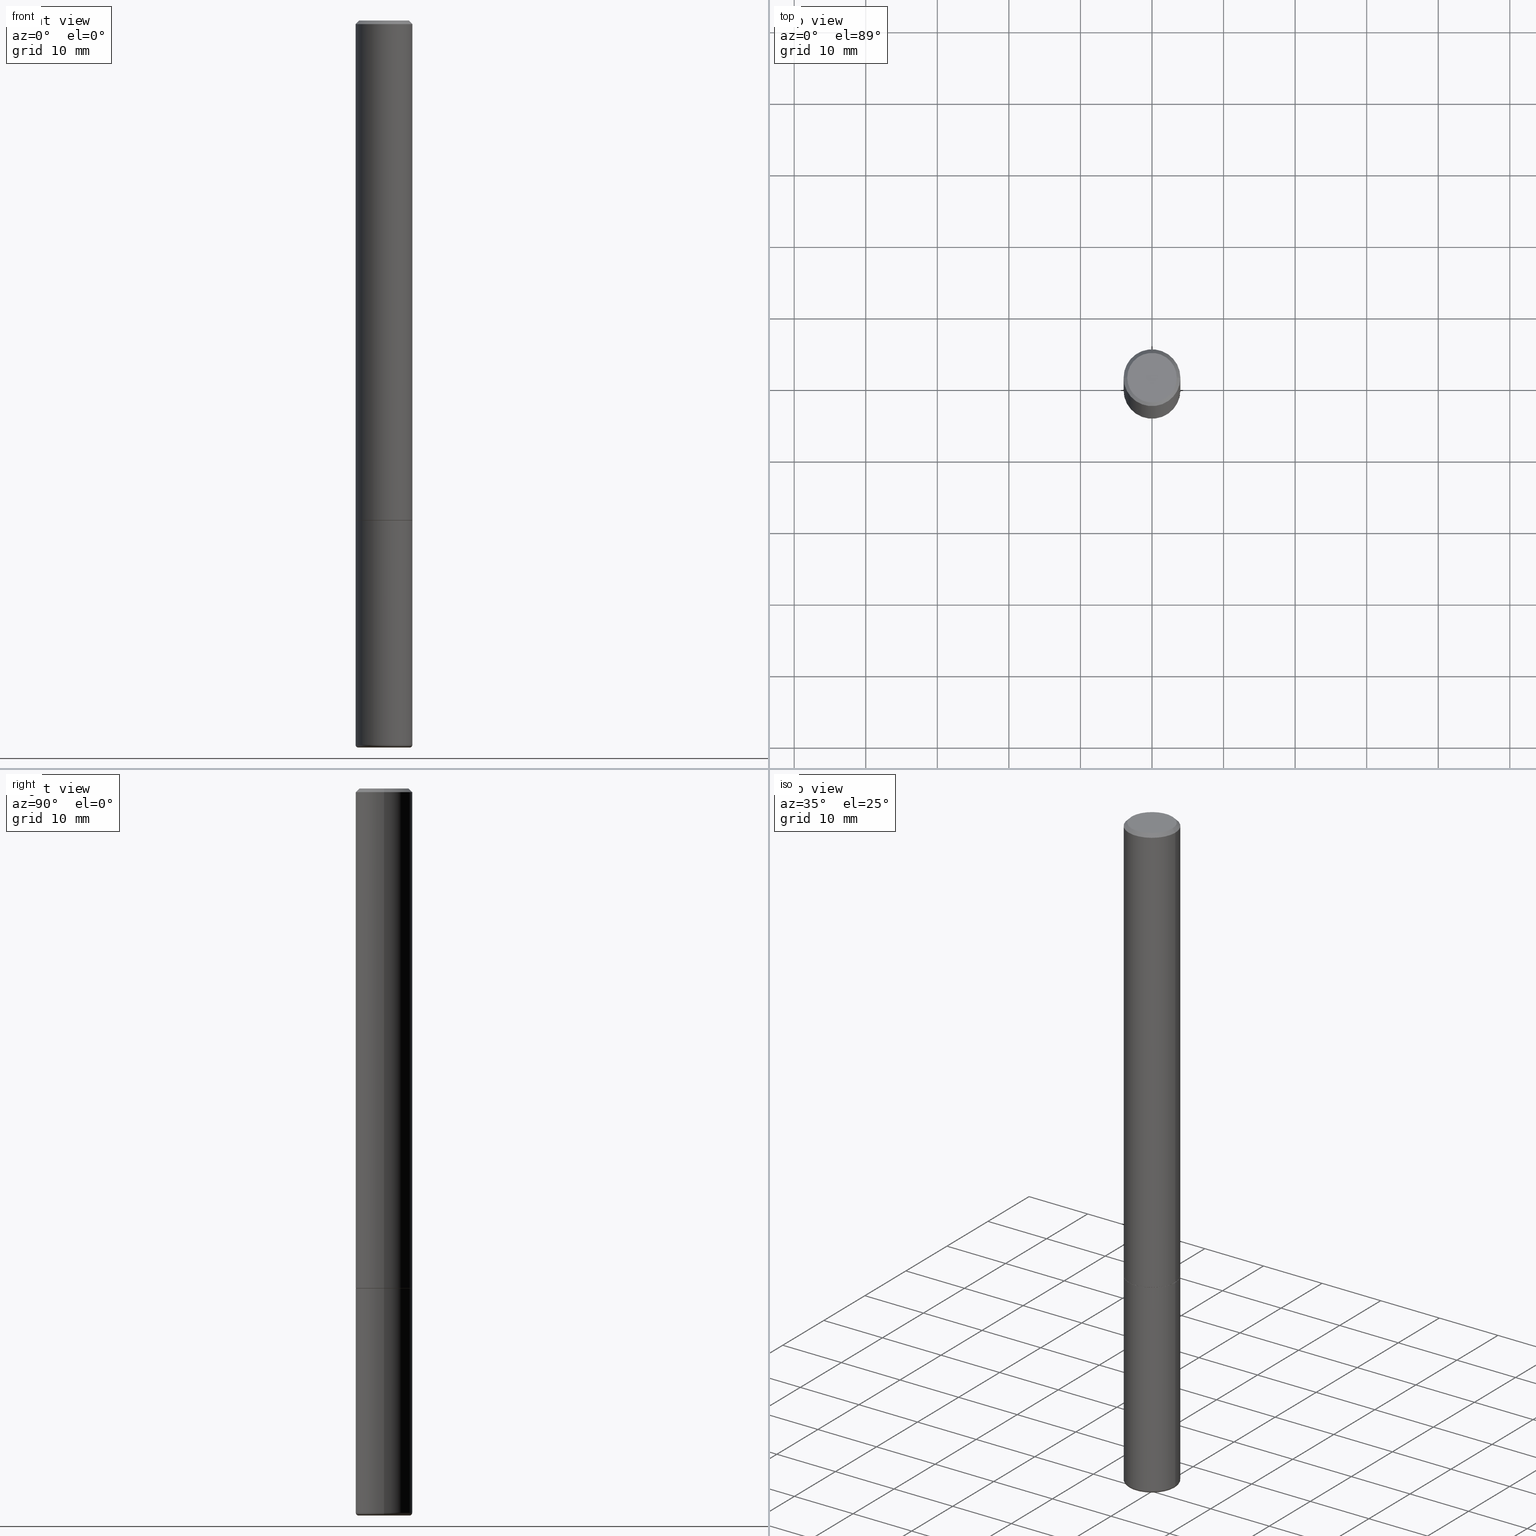
[diagram: canonical four-view strip — front | top / right | iso, engineering-drawing reading convention]
A machine part, canonical four-view strip (front | top / right | iso — engineering-drawing reading convention). The complete STEP part file that produces these views, byte-faithful:
ISO-10303-21;
HEADER;
FILE_DESCRIPTION (( 'STEP AP203' ),
    '1' );
FILE_NAME ('32621.STEP',
    '2022-04-26T19:40:36',
    ( '' ),
    ( '' ),
    'SwSTEP 2.0',
    'SolidWorks 2022',
    '' );
FILE_SCHEMA (( 'CONFIG_CONTROL_DESIGN' ));
ENDSEC;

DATA;
#1 = CONICAL_SURFACE ( 'NONE', #36, 0.1562499999999998057, 0.7853981633974479459 ) ;
#2 = DIRECTION ( 'NONE',  ( -0.7071067811865472397, 2.468850131082253905E-15, -0.7071067811865477948 ) ) ;
#3 = ORIENTED_EDGE ( 'NONE', *, *, #165, .F. ) ;
#4 = CYLINDRICAL_SURFACE ( 'NONE', #208, 0.1562499999999999445 ) ;
#5 = DIRECTION ( 'NONE',  ( -2.445468806185136597E-29, 3.491481338843145583E-15, 1.000000000000000000 ) ) ;
#6 = ORIENTED_EDGE ( 'NONE', *, *, #390, .T. ) ;
#7 = DIRECTION ( 'NONE',  ( -2.445468806185136597E-29, 3.491481338843145583E-15, 1.000000000000000000 ) ) ;
#8 = EDGE_CURVE ( 'NONE', #418, #233, #29, .T. ) ;
#9 = FACE_OUTER_BOUND ( 'NONE', #145, .T. ) ;
#10 = EDGE_LOOP ( 'NONE', ( #204, #79, #402, #254 ) ) ;
#11 = APPROVAL_PERSON_ORGANIZATION ( #179, #410, #114 ) ;
#12 = EDGE_CURVE ( 'NONE', #153, #106, #40, .T. ) ;
#13 = CARTESIAN_POINT ( 'NONE',  ( 0.1362499999999997879, -1.038262645562516547E-15, 6.957025900226685266E-30 ) ) ;
#14 = FACE_OUTER_BOUND ( 'NONE', #86, .T. ) ;
#15 =( LENGTH_UNIT ( ) NAMED_UNIT ( * ) SI_UNIT ( $, .METRE. ) );
#16 = DIRECTION ( 'NONE',  ( -2.445468806185136597E-29, 3.491481338843145583E-15, 1.000000000000000000 ) ) ;
#17 = ORIENTED_EDGE ( 'NONE', *, *, #8, .T. ) ;
#18 = CC_DESIGN_SECURITY_CLASSIFICATION ( #172, ( #407 ) ) ;
#19 = EDGE_CURVE ( 'NONE', #33, #153, #358, .T. ) ;
#20 = SHAPE_DEFINITION_REPRESENTATION ( #229, #23 ) ;
#21 = CARTESIAN_POINT ( 'NONE',  ( 0.000000000000000000, 0.000000000000000000, 0.000000000000000000 ) ) ;
#22 = ADVANCED_FACE ( 'NONE', ( #211 ), #286, .T. ) ;
#23 = ADVANCED_BREP_SHAPE_REPRESENTATION ( '32621', ( #31, #174, #206 ), #160 ) ;
#24 = APPROVAL_PERSON_ORGANIZATION ( #439, #287, #95 ) ;
#25 = AXIS2_PLACEMENT_3D ( 'NONE', #316, #147, #428 ) ;
#26 = COORDINATED_UNIVERSAL_TIME_OFFSET ( 5, 0, .BEHIND. ) ;
#27 = PERSON_AND_ORGANIZATION_ROLE ( 'creator' ) ;
#28 = ORIENTED_EDGE ( 'NONE', *, *, #403, .T. ) ;
#29 = CIRCLE ( 'NONE', #243, 0.1562499999999998612 ) ;
#30 = ORIENTED_EDGE ( 'NONE', *, *, #12, .T. ) ;
#31 = MANIFOLD_SOLID_BREP ( 'Body-Move/Copy2[1]', #155 ) ;
#32 = FACE_OUTER_BOUND ( 'NONE', #132, .T. ) ;
#33 = VERTEX_POINT ( 'NONE', #376 ) ;
#34 = ADVANCED_FACE ( 'NONE', ( #32 ), #256, .T. ) ;
#35 = EDGE_CURVE ( 'NONE', #33, #352, #104, .T. ) ;
#36 = AXIS2_PLACEMENT_3D ( 'NONE', #433, #296, #258 ) ;
#37 = VECTOR ( 'NONE', #319, 39.37007874015748143 ) ;
#38 = FACE_OUTER_BOUND ( 'NONE', #10, .T. ) ;
#39 = DIRECTION ( 'NONE',  ( -0.9998476951563914916, 6.920964387254063099E-15, -0.01745240643727605234 ) ) ;
#40 = LINE ( 'NONE', #279, #37 ) ;
#41 = DIMENSIONAL_EXPONENTS ( 1.000000000000000000, 0.000000000000000000, 0.000000000000000000, 0.000000000000000000, 0.000000000000000000, 0.000000000000000000, 0.000000000000000000 ) ;
#42 = DIRECTION ( 'NONE',  ( -1.000000000000000000, 6.982962677686265922E-15, -4.876176775795935793E-29 ) ) ;
#43 = CARTESIAN_POINT ( 'NONE',  ( 6.725039217009124520E-29, -9.601573681818649859E-15, -2.750000000000000000 ) ) ;
#44 = ORIENTED_EDGE ( 'NONE', *, *, #339, .F. ) ;
#45 = CC_DESIGN_DATE_AND_TIME_ASSIGNMENT ( #163, #265, ( #184 ) ) ;
#46 = CARTESIAN_POINT ( 'NONE',  ( 1.091087918388546227E-15, 0.1562499999999904243, -2.750000000000000444 ) ) ;
#47 = DIRECTION ( 'NONE',  ( 2.445468806185136597E-29, -3.491481338843145583E-15, -1.000000000000000000 ) ) ;
#48 = ORIENTED_EDGE ( 'NONE', *, *, #151, .F. ) ;
#49 = VECTOR ( 'NONE', #223, 39.37007874015748854 ) ;
#50 = CONICAL_SURFACE ( 'NONE', #25, 0.1552499999999999991, 0.7853981633978239785 ) ;
#51 = PRODUCT ( '32621', '32621', '', ( #188 ) ) ;
#52 = DIRECTION ( 'NONE',  ( -2.445468806185136597E-29, 3.491481338843145583E-15, 1.000000000000000000 ) ) ;
#53 = EDGE_LOOP ( 'NONE', ( #323, #375 ) ) ;
#54 = DIRECTION ( 'NONE',  ( -2.445468806185136597E-29, 3.491481338843145583E-15, 1.000000000000000000 ) ) ;
#55 = CC_DESIGN_PERSON_AND_ORGANIZATION_ASSIGNMENT ( #100, #263, ( #407 ) ) ;
#56 = LINE ( 'NONE', #62, #49 ) ;
#57 = AXIS2_PLACEMENT_3D ( 'NONE', #189, #157, #128 ) ;
#58 = AXIS2_PLACEMENT_3D ( 'NONE', #46, #171, #42 ) ;
#59 = DIRECTION ( 'NONE',  ( -2.445468806185136597E-29, 3.491481338843145583E-15, 1.000000000000000000 ) ) ;
#60 = ADVANCED_FACE ( 'NONE', ( #247 ), #308, .F. ) ;
#61 = ADVANCED_FACE ( 'NONE', ( #107 ), #336, .F. ) ;
#62 = CARTESIAN_POINT ( 'NONE',  ( -0.1552499999999999991, -8.498456084551095116E-15, -2.750000000000000000 ) ) ;
#63 = CARTESIAN_POINT ( 'NONE',  ( 6.725039217009124520E-29, -9.601573681818649859E-15, -2.750000000000000000 ) ) ;
#64 = APPROVAL ( #139, 'UNSPECIFIED' ) ;
#65 = CIRCLE ( 'NONE', #299, 0.1552499999999999991 ) ;
#66 = AXIS2_PLACEMENT_3D ( 'NONE', #278, #246, #385 ) ;
#67 = PERSON_AND_ORGANIZATION_ROLE ( 'classification_officer' ) ;
#68 = DESIGN_CONTEXT ( 'detailed design', #164, 'design' ) ;
#69 = DATE_AND_TIME ( #141, #268 ) ;
#70 = ORIENTED_EDGE ( 'NONE', *, *, #409, .T. ) ;
#71 = CC_DESIGN_APPROVAL ( #287, ( #407 ) ) ;
#72 = EDGE_LOOP ( 'NONE', ( #82, #30, #341, #118 ) ) ;
#73 = ORIENTED_EDGE ( 'NONE', *, *, #307, .F. ) ;
#74 = DIRECTION ( 'NONE',  ( -2.445468806185136597E-29, 3.491481338843145583E-15, 1.000000000000000000 ) ) ;
#75 = FACE_OUTER_BOUND ( 'NONE', #290, .T. ) ;
#76 = DIRECTION ( 'NONE',  ( 0.000000000000000000, 0.000000000000000000, 1.000000000000000000 ) ) ;
#77 = AXIS2_PLACEMENT_3D ( 'NONE', #212, #182, #149 ) ;
#78 = CARTESIAN_POINT ( 'NONE',  ( 9.781869637889384426E-29, -1.396591737882979035E-14, -3.999997715427345391 ) ) ;
#79 = ORIENTED_EDGE ( 'NONE', *, *, #420, .T. ) ;
#80 = CARTESIAN_POINT ( 'NONE',  ( -0.1412500000000000422, -1.290991152102879186E-14, -3.984999999999999876 ) ) ;
#81 = CYLINDRICAL_SURFACE ( 'NONE', #77, 0.1562499999999999167 ) ;
#82 = ORIENTED_EDGE ( 'NONE', *, *, #156, .F. ) ;
#83 = DIRECTION ( 'NONE',  ( 1.000000000000000000, -6.982962677686262766E-15, 0.000000000000000000 ) ) ;
#84 = CARTESIAN_POINT ( 'NONE',  ( 9.781869637889384426E-29, -1.396591737882979035E-14, -3.999997715427345391 ) ) ;
#85 = DIRECTION ( 'NONE',  ( 1.000000000000000000, -6.982962677686269077E-15, 0.000000000000000000 ) ) ;
#86 = EDGE_LOOP ( 'NONE', ( #138, #235 ) ) ;
#87 = APPLICATION_PROTOCOL_DEFINITION ( 'international standard', 'config_control_design', 1994, #222 ) ;
#88 = VERTEX_POINT ( 'NONE', #270 ) ;
#89 = ADVANCED_FACE ( 'NONE', ( #442 ), #282, .F. ) ;
#90 = AXIS2_PLACEMENT_3D ( 'NONE', #415, #108, #242 ) ;
#91 = DIRECTION ( 'NONE',  ( -2.445468806185136877E-29, 3.491481338843145188E-15, 1.000000000000000000 ) ) ;
#92 = DIRECTION ( 'NONE',  ( -2.445468806185136597E-29, 3.491481338843145583E-15, 1.000000000000000000 ) ) ;
#93 = AXIS2_PLACEMENT_3D ( 'NONE', #332, #329, #158 ) ;
#94 = CIRCLE ( 'NONE', #354, 0.1409882139034408788 ) ;
#95 = APPROVAL_ROLE ( '' ) ;
#96 = ORIENTED_EDGE ( 'NONE', *, *, #98, .T. ) ;
#97 = APPROVAL_ROLE ( '' ) ;
#98 = EDGE_CURVE ( 'NONE', #391, #233, #219, .T. ) ;
#99 = COORDINATED_UNIVERSAL_TIME_OFFSET ( 5, 0, .BEHIND. ) ;
#100 = PERSON_AND_ORGANIZATION ( #342, #325 ) ;
#101 = AXIS2_PLACEMENT_3D ( 'NONE', #284, #47, #119 ) ;
#102 = AXIS2_PLACEMENT_3D ( 'NONE', #43, #52, #207 ) ;
#103 = DIRECTION ( 'NONE',  ( 2.438088387897960049E-29, -3.491481338843145188E-15, -1.000000000000000000 ) ) ;
#104 = LINE ( 'NONE', #178, #294 ) ;
#105 = DIRECTION ( 'NONE',  ( 0.9998476951563914916, -6.920387862090559512E-15, -0.01745240643727605234 ) ) ;
#106 = VERTEX_POINT ( 'NONE', #273 ) ;
#107 = FACE_OUTER_BOUND ( 'NONE', #271, .T. ) ;
#108 = DIRECTION ( 'NONE',  ( -2.445468806185136597E-29, 3.491481338843145583E-15, 1.000000000000000000 ) ) ;
#109 = LOCAL_TIME ( 15, 40, 36.00000000000000000, #120 ) ;
#110 = EDGE_CURVE ( 'NONE', #441, #391, #303, .T. ) ;
#111 = CIRCLE ( 'NONE', #124, 0.1552499999999999991 ) ;
#112 = CARTESIAN_POINT ( 'NONE',  ( 6.722593748202942280E-29, -9.598082200479810007E-15, -2.749000000000000554 ) ) ;
#113 = ORIENTED_EDGE ( 'NONE', *, *, #98, .F. ) ;
#114 = APPROVAL_ROLE ( '' ) ;
#115 = CARTESIAN_POINT ( 'NONE',  ( 9.745193192647769069E-29, -1.391355313528993407E-14, -3.984999999999999876 ) ) ;
#116 = DIRECTION ( 'NONE',  ( 1.000000000000000000, -6.982962677686267499E-15, 0.000000000000000000 ) ) ;
#117 = CARTESIAN_POINT ( 'NONE',  ( 9.745193192647769069E-29, -1.391355313528993407E-14, -3.984999999999999876 ) ) ;
#118 = ORIENTED_EDGE ( 'NONE', *, *, #35, .F. ) ;
#119 = DIRECTION ( 'NONE',  ( -1.000000000000000000, 6.982962677686266711E-15, 0.000000000000000000 ) ) ;
#120 = COORDINATED_UNIVERSAL_TIME_OFFSET ( 5, 0, .BEHIND. ) ;
#121 = DIRECTION ( 'NONE',  ( 1.000000000000000000, -6.982962677686268288E-15, 0.000000000000000000 ) ) ;
#122 = ORIENTED_EDGE ( 'NONE', *, *, #397, .T. ) ;
#123 = APPROVAL_PERSON_ORGANIZATION ( #337, #64, #97 ) ;
#124 = AXIS2_PLACEMENT_3D ( 'NONE', #414, #425, #121 ) ;
#125 = CARTESIAN_POINT ( 'NONE',  ( -0.1562499999999998057, 1.021258291611614692E-15, -0.02000000000000002470 ) ) ;
#126 = CARTESIAN_POINT ( 'NONE',  ( 0.1562500000000000000, -1.069266160020712824E-14, -2.750000000000000000 ) ) ;
#127 = ADVANCED_FACE ( 'NONE', ( #38 ), #4, .T. ) ;
#128 = DIRECTION ( 'NONE',  ( 1.000000000000000000, -6.982962677686262766E-15, 0.000000000000000000 ) ) ;
#129 = LOCAL_TIME ( 15, 40, 36.00000000000000000, #99 ) ;
#130 = AXIS2_PLACEMENT_3D ( 'NONE', #80, #180, #288 ) ;
#131 = CARTESIAN_POINT ( 'NONE',  ( 0.1409882139034411841, -1.493316673802373327E-14, -3.999997715427345391 ) ) ;
#132 = EDGE_LOOP ( 'NONE', ( #48, #314, #96, #427 ) ) ;
#133 = LOCAL_TIME ( 15, 40, 36.00000000000000000, #26 ) ;
#134 = AXIS2_PLACEMENT_3D ( 'NONE', #311, #175, #142 ) ;
#135 = ORIENTED_EDGE ( 'NONE', *, *, #397, .F. ) ;
#136 = EDGE_CURVE ( 'NONE', #335, #106, #381, .T. ) ;
#137 = EDGE_CURVE ( 'NONE', #231, #335, #431, .T. ) ;
#138 = ORIENTED_EDGE ( 'NONE', *, *, #409, .F. ) ;
#139 = APPROVAL_STATUS ( 'not_yet_approved' ) ;
#140 = ORIENTED_EDGE ( 'NONE', *, *, #423, .F. ) ;
#141 = CALENDAR_DATE ( 2022, 26, 4 ) ;
#142 = DIRECTION ( 'NONE',  ( 1.000000000000000000, -6.982962677686213068E-15, 0.000000000000000000 ) ) ;
#143 = CARTESIAN_POINT ( 'NONE',  ( 0.1552499999999999991, -1.068567863752944381E-14, -2.750000000000000000 ) ) ;
#144 = DIRECTION ( 'NONE',  ( -2.445468806185136597E-29, 3.491481338843145583E-15, 1.000000000000000000 ) ) ;
#145 = EDGE_LOOP ( 'NONE', ( #70, #264, #135, #140 ) ) ;
#146 = CARTESIAN_POINT ( 'NONE',  ( -0.1562499999999998612, -1.280333011066477753E-14, -3.984999999999999876 ) ) ;
#147 = DIRECTION ( 'NONE',  ( -2.445468806185136597E-29, 3.491481338843145583E-15, 1.000000000000000000 ) ) ;
#148 = CARTESIAN_POINT ( 'NONE',  ( 0.000000000000000000, 0.000000000000000000, 0.000000000000000000 ) ) ;
#149 = DIRECTION ( 'NONE',  ( 1.000000000000000000, -6.982962677686265133E-15, 4.876176775795935232E-29 ) ) ;
#150 = ORIENTED_EDGE ( 'NONE', *, *, #390, .F. ) ;
#151 = EDGE_CURVE ( 'NONE', #441, #418, #401, .T. ) ;
#152 = DIRECTION ( 'NONE',  ( 1.000000000000000000, -6.982962677686262766E-15, 0.000000000000000000 ) ) ;
#153 = VERTEX_POINT ( 'NONE', #13 ) ;
#154 = AXIS2_PLACEMENT_3D ( 'NONE', #257, #393, #366 ) ;
#155 = CLOSED_SHELL ( 'NONE', ( #127, #245, #61, #359, #34, #22, #60 ) ) ;
#156 = EDGE_CURVE ( 'NONE', #153, #33, #374, .T. ) ;
#157 = DIRECTION ( 'NONE',  ( -2.445468806185136597E-29, 3.491481338843145583E-15, 1.000000000000000000 ) ) ;
#158 = DIRECTION ( 'NONE',  ( -1.000000000000000000, 6.982962677686266711E-15, 0.000000000000000000 ) ) ;
#159 = DIRECTION ( 'NONE',  ( -2.445468806185136597E-29, 3.491481338843145583E-15, 1.000000000000000000 ) ) ;
#160 =( GEOMETRIC_REPRESENTATION_CONTEXT ( 3 ) GLOBAL_UNCERTAINTY_ASSIGNED_CONTEXT ( ( #396 ) ) GLOBAL_UNIT_ASSIGNED_CONTEXT ( ( #426, #216, #356 ) ) REPRESENTATION_CONTEXT ( 'NONE', 'WORKASPACE' ) );
#161 = CARTESIAN_POINT ( 'NONE',  ( -0.1562499999999999167, 1.110223024625155949E-15, -7.685836078523285555E-30 ) ) ;
#162 = APPROVAL_STATUS ( 'not_yet_approved' ) ;
#163 = DATE_AND_TIME ( #269, #129 ) ;
#164 = APPLICATION_CONTEXT ( 'configuration controlled 3d designs of mechanical parts and assemblies' ) ;
#165 = EDGE_CURVE ( 'NONE', #383, #441, #210, .T. ) ;
#166 = APPROVAL_DATE_TIME ( #404, #287 ) ;
#167 = CC_DESIGN_PERSON_AND_ORGANIZATION_ASSIGNMENT ( #197, #27, ( #184 ) ) ;
#168 = COORDINATED_UNIVERSAL_TIME_OFFSET ( 5, 0, .BEHIND. ) ;
#169 = DIRECTION ( 'NONE',  ( 1.000000000000000000, -6.982962677686269077E-15, 4.883557194083113462E-29 ) ) ;
#170 = PERSON_AND_ORGANIZATION_ROLE ( 'design_owner' ) ;
#171 = DIRECTION ( 'NONE',  ( 2.438088387897960049E-29, -3.491481338843145188E-15, -1.000000000000000000 ) ) ;
#172 = SECURITY_CLASSIFICATION ( '', '', #260 ) ;
#173 = DIRECTION ( 'NONE',  ( -2.445468806185136597E-29, 3.491481338843145583E-15, 1.000000000000000000 ) ) ;
#174 = MANIFOLD_SOLID_BREP ( 'Body-Move/Copy2[2]', #395 ) ;
#175 = DIRECTION ( 'NONE',  ( -6.982962677686266711E-15, -1.000000000000000000, 3.491481338843145583E-15 ) ) ;
#176 = PLANE ( 'NONE',  #66 ) ;
#177 = DIRECTION ( 'NONE',  ( 1.000000000000000000, 0.000000000000000000, 0.000000000000000000 ) ) ;
#178 = CARTESIAN_POINT ( 'NONE',  ( -0.1562499999999998057, 1.021258291611614692E-15, -0.02000000000000002470 ) ) ;
#179 = PERSON_AND_ORGANIZATION ( #342, #325 ) ;
#180 = DIRECTION ( 'NONE',  ( 7.105427357601001859E-15, 1.000000000000000000, -3.491481338843145583E-15 ) ) ;
#181 = LINE ( 'NONE', #143, #302 ) ;
#182 = DIRECTION ( 'NONE',  ( -2.445468806185136597E-29, 3.491481338843145583E-15, 1.000000000000000000 ) ) ;
#183 = ORIENTED_EDGE ( 'NONE', *, *, #281, .F. ) ;
#184 = PRODUCT_DEFINITION ( 'UNKNOWN', '', #407, #68 ) ;
#185 = AXIS2_PLACEMENT_3D ( 'NONE', #148, #422, #387 ) ;
#186 = FACE_OUTER_BOUND ( 'NONE', #217, .T. ) ;
#187 = ORIENTED_EDGE ( 'NONE', *, *, #363, .T. ) ;
#188 = MECHANICAL_CONTEXT ( 'NONE', #222, 'mechanical' ) ;
#189 = CARTESIAN_POINT ( 'NONE',  ( 6.725039217009124520E-29, -9.601573681818649859E-15, -2.750000000000000000 ) ) ;
#190 = APPROVAL_STATUS ( 'not_yet_approved' ) ;
#191 = AXIS2_PLACEMENT_3D ( 'NONE', #209, #340, #408 ) ;
#192 = CYLINDRICAL_SURFACE ( 'NONE', #230, 0.1562499999999999167 ) ;
#193 = DIRECTION ( 'NONE',  ( 1.000000000000000000, -6.982962677686262766E-15, 0.000000000000000000 ) ) ;
#194 = AXIS2_PLACEMENT_3D ( 'NONE', #112, #244, #83 ) ;
#195 = ORIENTED_EDGE ( 'NONE', *, *, #12, .F. ) ;
#196 = ADVANCED_FACE ( 'NONE', ( #9 ), #347, .T. ) ;
#197 = PERSON_AND_ORGANIZATION ( #342, #325 ) ;
#198 = ORIENTED_EDGE ( 'NONE', *, *, #151, .T. ) ;
#199 = CC_DESIGN_DATE_AND_TIME_ASSIGNMENT ( #430, #384, ( #172 ) ) ;
#200 = CONICAL_SURFACE ( 'NONE', #101, 0.1562499999999998057, 0.7853981633974479459 ) ;
#201 = AXIS2_PLACEMENT_3D ( 'NONE', #277, #103, #203 ) ;
#202 = PERSON_AND_ORGANIZATION ( #342, #325 ) ;
#203 = DIRECTION ( 'NONE',  ( -1.000000000000000000, 6.982962677686265922E-15, -4.876176775795935793E-29 ) ) ;
#204 = ORIENTED_EDGE ( 'NONE', *, *, #307, .T. ) ;
#205 = DIRECTION ( 'NONE',  ( 1.000000000000000000, -6.982962677686267499E-15, 0.000000000000000000 ) ) ;
#206 = AXIS2_PLACEMENT_3D ( 'NONE', #380, #76, #177 ) ;
#207 = DIRECTION ( 'NONE',  ( 1.000000000000000000, -6.982962677686268288E-15, 0.000000000000000000 ) ) ;
#208 = AXIS2_PLACEMENT_3D ( 'NONE', #346, #144, #413 ) ;
#209 = CARTESIAN_POINT ( 'NONE',  ( 1.060541508969286244E-27, -1.514172202184485807E-13, -43.36761549715703268 ) ) ;
#210 = LINE ( 'NONE', #313, #435 ) ;
#211 = FACE_OUTER_BOUND ( 'NONE', #237, .T. ) ;
#212 = CARTESIAN_POINT ( 'NONE',  ( 0.000000000000000000, 0.000000000000000000, 0.000000000000000000 ) ) ;
#213 = CARTESIAN_POINT ( 'NONE',  ( 9.745193192647769069E-29, -1.391355313528993407E-14, -3.984999999999999876 ) ) ;
#214 = EDGE_CURVE ( 'NONE', #386, #88, #236, .T. ) ;
#215 = CC_DESIGN_PERSON_AND_ORGANIZATION_ASSIGNMENT ( #398, #67, ( #172 ) ) ;
#216 =( NAMED_UNIT ( * ) PLANE_ANGLE_UNIT ( ) SI_UNIT ( $, .RADIAN. ) );
#217 = EDGE_LOOP ( 'NONE', ( #44, #334, #266, #440 ) ) ;
#218 = CC_DESIGN_APPROVAL ( #64, ( #184 ) ) ;
#219 = CIRCLE ( 'NONE', #134, 0.01499999999999983985 ) ;
#220 = VERTEX_POINT ( 'NONE', #291 ) ;
#221 = DIRECTION ( 'NONE',  ( 1.000000000000000000, -6.982962677686265133E-15, 4.876176775795935232E-29 ) ) ;
#222 = APPLICATION_CONTEXT ( 'configuration controlled 3d designs of mechanical parts and assemblies' ) ;
#223 = DIRECTION ( 'NONE',  ( -0.7071067811868130271, 7.493145998871311837E-15, 0.7071067811862817853 ) ) ;
#224 = AXIS2_PLACEMENT_3D ( 'NONE', #115, #378, #169 ) ;
#225 = CARTESIAN_POINT ( 'NONE',  ( 4.890937612370279289E-31, -6.982962677686299005E-17, -0.02000000000000002470 ) ) ;
#226 = LINE ( 'NONE', #161, #318 ) ;
#227 = CARTESIAN_POINT ( 'NONE',  ( 6.722593748202942280E-29, -9.598082200479810007E-15, -2.749000000000000554 ) ) ;
#228 = ADVANCED_FACE ( 'NONE', ( #186 ), #50, .T. ) ;
#229 = PRODUCT_DEFINITION_SHAPE ( 'NONE', 'NONE',  #184 ) ;
#230 = AXIS2_PLACEMENT_3D ( 'NONE', #21, #392, #221 ) ;
#231 = VERTEX_POINT ( 'NONE', #285 ) ;
#232 = CC_DESIGN_PERSON_AND_ORGANIZATION_ASSIGNMENT ( #437, #305, ( #407 ) ) ;
#233 = VERTEX_POINT ( 'NONE', #349 ) ;
#234 = AXIS2_PLACEMENT_3D ( 'NONE', #227, #59, #193 ) ;
#235 = ORIENTED_EDGE ( 'NONE', *, *, #280, .F. ) ;
#236 = CIRCLE ( 'NONE', #365, 0.1562500000000000000 ) ;
#237 = EDGE_LOOP ( 'NONE', ( #276, #17, #306, #350 ) ) ;
#238 = LENGTH_MEASURE_WITH_UNIT ( LENGTH_MEASURE( 0.02539999999999999897 ), #15 );
#239 = FACE_OUTER_BOUND ( 'NONE', #309, .T. ) ;
#240 = ORIENTED_EDGE ( 'NONE', *, *, #165, .T. ) ;
#241 = VECTOR ( 'NONE', #252, 39.37007874015748143 ) ;
#242 = DIRECTION ( 'NONE',  ( 1.000000000000000000, -6.982962677686266711E-15, 4.876176775795935232E-29 ) ) ;
#243 = AXIS2_PLACEMENT_3D ( 'NONE', #213, #54, #317 ) ;
#244 = DIRECTION ( 'NONE',  ( -2.445468806185136597E-29, 3.491481338843145583E-15, 1.000000000000000000 ) ) ;
#245 = ADVANCED_FACE ( 'NONE', ( #417 ), #272, .T. ) ;
#246 = DIRECTION ( 'NONE',  ( -2.438088387897960049E-29, 3.491481338843145188E-15, 1.000000000000000000 ) ) ;
#247 = FACE_OUTER_BOUND ( 'NONE', #412, .T. ) ;
#248 = CARTESIAN_POINT ( 'NONE',  ( -0.1409882139034411841, -1.298140194314841361E-14, -3.999997715427345391 ) ) ;
#249 = CARTESIAN_POINT ( 'NONE',  ( 6.725039217009124520E-29, -9.601573681818649859E-15, -2.750000000000000000 ) ) ;
#250 = ORIENTED_EDGE ( 'NONE', *, *, #19, .F. ) ;
#251 = ADVANCED_FACE ( 'NONE', ( #14 ), #176, .F. ) ;
#252 = DIRECTION ( 'NONE',  ( -2.445468806185136877E-29, 3.491481338843145188E-15, 1.000000000000000000 ) ) ;
#253 = DIRECTION ( 'NONE',  ( 1.000000000000000000, -6.982962677686269077E-15, 4.883557194083113462E-29 ) ) ;
#254 = ORIENTED_EDGE ( 'NONE', *, *, #421, .F. ) ;
#255 = CIRCLE ( 'NONE', #234, 0.1562500000000000000 ) ;
#256 = TOROIDAL_SURFACE ( 'NONE', #224, 0.1412500000000000422, 0.01499999999999984505 ) ;
#257 = CARTESIAN_POINT ( 'NONE',  ( 4.890937612370279289E-31, -6.982962677686299005E-17, -0.02000000000000002470 ) ) ;
#258 = DIRECTION ( 'NONE',  ( -1.000000000000000000, 6.982962677686266711E-15, 0.000000000000000000 ) ) ;
#259 = AXIS2_PLACEMENT_3D ( 'NONE', #78, #74, #205 ) ;
#260 = SECURITY_CLASSIFICATION_LEVEL ( 'unclassified' ) ;
#261 = ORIENTED_EDGE ( 'NONE', *, *, #362, .F. ) ;
#262 = CIRCLE ( 'NONE', #382, 0.1562499999999998612 ) ;
#263 = PERSON_AND_ORGANIZATION_ROLE ( 'creator' ) ;
#264 = ORIENTED_EDGE ( 'NONE', *, *, #339, .T. ) ;
#265 = DATE_TIME_ROLE ( 'creation_date' ) ;
#266 = ORIENTED_EDGE ( 'NONE', *, *, #423, .T. ) ;
#267 = ORIENTED_EDGE ( 'NONE', *, *, #403, .F. ) ;
#268 = LOCAL_TIME ( 15, 40, 36.00000000000000000, #168 ) ;
#269 = CALENDAR_DATE ( 2022, 26, 4 ) ;
#270 = CARTESIAN_POINT ( 'NONE',  ( -0.1562500000000000000, -1.064734038392913621E-14, -2.750000000000000000 ) ) ;
#271 = EDGE_LOOP ( 'NONE', ( #3, #338, #389 ) ) ;
#272 = TOROIDAL_SURFACE ( 'NONE', #333, 0.1412500000000000422, 0.01499999999999984505 ) ;
#273 = CARTESIAN_POINT ( 'NONE',  ( 0.1562499999999998057, -1.141782438928663330E-15, -0.02000000000000002470 ) ) ;
#274 = FACE_OUTER_BOUND ( 'NONE', #72, .T. ) ;
#275 = LINE ( 'NONE', #379, #368 ) ;
#276 = ORIENTED_EDGE ( 'NONE', *, *, #420, .F. ) ;
#277 = CARTESIAN_POINT ( 'NONE',  ( 9.514286648347523799E-16, 0.1362499999999997879, -4.757143324173778663E-16 ) ) ;
#278 = CARTESIAN_POINT ( 'NONE',  ( 6.725039217009124520E-29, -9.601573681818649859E-15, -2.750000000000000000 ) ) ;
#279 = CARTESIAN_POINT ( 'NONE',  ( 0.1562499999999998057, -1.141782438928663330E-15, -0.02000000000000002470 ) ) ;
#280 = EDGE_CURVE ( 'NONE', #220, #405, #111, .T. ) ;
#281 = EDGE_CURVE ( 'NONE', #383, #391, #275, .T. ) ;
#282 = PLANE ( 'NONE',  #201 ) ;
#283 = AXIS2_PLACEMENT_3D ( 'NONE', #225, #159, #434 ) ;
#284 = CARTESIAN_POINT ( 'NONE',  ( 4.890937612370279289E-31, -6.982962677686299005E-17, -0.02000000000000002470 ) ) ;
#285 = CARTESIAN_POINT ( 'NONE',  ( -0.1562500000000000000, -3.723732889003176957E-15, -2.749000000000000554 ) ) ;
#286 = CYLINDRICAL_SURFACE ( 'NONE', #327, 0.1562499999999999445 ) ;
#287 = APPROVAL ( #162, 'UNSPECIFIED' ) ;
#288 = DIRECTION ( 'NONE',  ( -1.000000000000000000, 7.105427357601066545E-15, 0.000000000000000000 ) ) ;
#289 = DIRECTION ( 'NONE',  ( -2.445468806185136597E-29, 3.491481338843145583E-15, 1.000000000000000000 ) ) ;
#290 = EDGE_LOOP ( 'NONE', ( #150, #357, #429, #267 ) ) ;
#291 = CARTESIAN_POINT ( 'NONE',  ( -0.1552499999999999991, -8.493157630202874291E-15, -2.750000000000000000 ) ) ;
#292 = CARTESIAN_POINT ( 'NONE',  ( 0.000000000000000000, 0.000000000000000000, 0.000000000000000000 ) ) ;
#293 = CALENDAR_DATE ( 2022, 26, 4 ) ;
#294 = VECTOR ( 'NONE', #2, 39.37007874015748143 ) ;
#295 = COORDINATED_UNIVERSAL_TIME_OFFSET ( 5, 0, .BEHIND. ) ;
#296 = DIRECTION ( 'NONE',  ( 2.445468806185136597E-29, -3.491481338843145583E-15, -1.000000000000000000 ) ) ;
#297 = CARTESIAN_POINT ( 'NONE',  ( 9.775851440820888348E-29, -1.395732498840347022E-14, -3.997536756999548579 ) ) ;
#298 = ADVANCED_FACE ( 'NONE', ( #239 ), #81, .T. ) ;
#299 = AXIS2_PLACEMENT_3D ( 'NONE', #63, #92, #315 ) ;
#300 = CARTESIAN_POINT ( 'NONE',  ( 0.1552499999999999991, -1.068567863752944381E-14, -2.750000000000000000 ) ) ;
#301 = CALENDAR_DATE ( 2022, 26, 4 ) ;
#302 = VECTOR ( 'NONE', #424, 39.37007874015748854 ) ;
#303 = CIRCLE ( 'NONE', #259, 0.1409882139034408788 ) ;
#304 = APPROVAL_DATE_TIME ( #69, #64 ) ;
#305 = PERSON_AND_ORGANIZATION_ROLE ( 'design_supplier' ) ;
#306 = ORIENTED_EDGE ( 'NONE', *, *, #421, .T. ) ;
#307 = EDGE_CURVE ( 'NONE', #233, #418, #262, .T. ) ;
#308 = PLANE ( 'NONE',  #58 ) ;
#309 = EDGE_LOOP ( 'NONE', ( #122, #6, #261, #372 ) ) ;
#310 = APPLICATION_PROTOCOL_DEFINITION ( 'international standard', 'config_control_design', 1994, #164 ) ;
#311 = CARTESIAN_POINT ( 'NONE',  ( 0.1412500000000000422, -1.489989661351311908E-14, -3.984999999999999876 ) ) ;
#312 = ORIENTED_EDGE ( 'NONE', *, *, #436, .T. ) ;
#313 = CARTESIAN_POINT ( 'NONE',  ( 9.775851440820888348E-29, -1.395732498840347022E-14, -3.997536756999548579 ) ) ;
#314 = ORIENTED_EDGE ( 'NONE', *, *, #110, .T. ) ;
#315 = DIRECTION ( 'NONE',  ( 1.000000000000000000, -6.982962677686268288E-15, 0.000000000000000000 ) ) ;
#316 = CARTESIAN_POINT ( 'NONE',  ( 6.725039217009124520E-29, -9.601573681818649859E-15, -2.750000000000000000 ) ) ;
#317 = DIRECTION ( 'NONE',  ( 1.000000000000000000, -6.982962677686269077E-15, 0.000000000000000000 ) ) ;
#318 = VECTOR ( 'NONE', #91, 39.37007874015748143 ) ;
#319 = DIRECTION ( 'NONE',  ( 0.7071067811865472397, -7.319954787623254468E-15, -0.7071067811865477948 ) ) ;
#320 = VECTOR ( 'NONE', #416, 39.37007874015748143 ) ;
#321 = LINE ( 'NONE', #355, #241 ) ;
#322 = CARTESIAN_POINT ( 'NONE',  ( 9.745193192647769069E-29, -1.391355313528993407E-14, -3.984999999999999876 ) ) ;
#323 = ORIENTED_EDGE ( 'NONE', *, *, #19, .T. ) ;
#324 = APPROVAL_DATE_TIME ( #328, #410 ) ;
#325 = ORGANIZATION ( 'UNSPECIFIED', 'UNSPECIFIED', '' ) ;
#326 = FACE_OUTER_BOUND ( 'NONE', #370, .T. ) ;
#327 = AXIS2_PLACEMENT_3D ( 'NONE', #292, #7, #353 ) ;
#328 = DATE_AND_TIME ( #432, #345 ) ;
#329 = DIRECTION ( 'NONE',  ( 2.445468806185136597E-29, -3.491481338843145583E-15, -1.000000000000000000 ) ) ;
#330 = ADVANCED_FACE ( 'NONE', ( #75 ), #192, .T. ) ;
#331 = PRODUCT_RELATED_PRODUCT_CATEGORY ( 'detail', '', ( #51 ) ) ;
#332 = CARTESIAN_POINT ( 'NONE',  ( 1.060541508969286244E-27, -1.514172202184485807E-13, -43.36761549715703268 ) ) ;
#333 = AXIS2_PLACEMENT_3D ( 'NONE', #322, #16, #253 ) ;
#334 = ORIENTED_EDGE ( 'NONE', *, *, #280, .T. ) ;
#335 = VERTEX_POINT ( 'NONE', #361 ) ;
#336 = CONICAL_SURFACE ( 'NONE', #191, 2255.510300424564321, 1.553343034274960788 ) ;
#337 = PERSON_AND_ORGANIZATION ( #342, #325 ) ;
#338 = ORIENTED_EDGE ( 'NONE', *, *, #281, .T. ) ;
#339 = EDGE_CURVE ( 'NONE', #220, #231, #56, .T. ) ;
#340 = DIRECTION ( 'NONE',  ( 2.445468806185136597E-29, -3.491481338843145583E-15, -1.000000000000000000 ) ) ;
#341 = ORIENTED_EDGE ( 'NONE', *, *, #362, .T. ) ;
#342 = PERSON ( 'UNSPECIFIED', 'UNSPECIFIED', 'UNSPECIFIED', ('UNSPECIFIED'), ('UNSPECIFIED'), ('UNSPECIFIED') ) ;
#343 = LINE ( 'NONE', #411, #367 ) ;
#344 = CIRCLE ( 'NONE', #283, 0.1562499999999998057 ) ;
#345 = LOCAL_TIME ( 15, 40, 36.00000000000000000, #295 ) ;
#346 = CARTESIAN_POINT ( 'NONE',  ( 0.000000000000000000, 0.000000000000000000, 0.000000000000000000 ) ) ;
#347 = CONICAL_SURFACE ( 'NONE', #102, 0.1552499999999999991, 0.7853981633978239785 ) ;
#348 = DIRECTION ( 'NONE',  ( -2.445468806185136877E-29, 3.491481338843145188E-15, 1.000000000000000000 ) ) ;
#349 = CARTESIAN_POINT ( 'NONE',  ( 0.1562499999999998612, -1.500464105367841245E-14, -3.984999999999999876 ) ) ;
#350 = ORIENTED_EDGE ( 'NONE', *, *, #363, .F. ) ;
#351 = CARTESIAN_POINT ( 'NONE',  ( 0.1562499999999999167, -1.091087918388478385E-15, 7.619026212181144772E-30 ) ) ;
#352 = VERTEX_POINT ( 'NONE', #125 ) ;
#353 = DIRECTION ( 'NONE',  ( 1.000000000000000000, -6.982962677686266711E-15, 4.876176775795935232E-29 ) ) ;
#354 = AXIS2_PLACEMENT_3D ( 'NONE', #84, #173, #116 ) ;
#355 = CARTESIAN_POINT ( 'NONE',  ( -0.1562499999999999445, 1.110223024625156146E-15, -7.685836078523286956E-30 ) ) ;
#356 =( NAMED_UNIT ( * ) SI_UNIT ( $, .STERADIAN. ) SOLID_ANGLE_UNIT ( ) );
#357 = ORIENTED_EDGE ( 'NONE', *, *, #137, .T. ) ;
#358 = CIRCLE ( 'NONE', #90, 0.1362499999999997879 ) ;
#359 = ADVANCED_FACE ( 'NONE', ( #364 ), #394, .F. ) ;
#360 = ORIENTED_EDGE ( 'NONE', *, *, #35, .T. ) ;
#361 = CARTESIAN_POINT ( 'NONE',  ( 0.1562500000000000000, -1.068917011886828839E-14, -2.749000000000000554 ) ) ;
#362 = EDGE_CURVE ( 'NONE', #106, #352, #344, .T. ) ;
#363 = EDGE_CURVE ( 'NONE', #88, #386, #438, .T. ) ;
#364 = FACE_OUTER_BOUND ( 'NONE', #369, .T. ) ;
#365 = AXIS2_PLACEMENT_3D ( 'NONE', #249, #5, #152 ) ;
#366 = DIRECTION ( 'NONE',  ( 1.000000000000000000, -6.982962677686266711E-15, 0.000000000000000000 ) ) ;
#367 = VECTOR ( 'NONE', #348, 39.37007874015748143 ) ;
#368 = VECTOR ( 'NONE', #105, 39.37007874015747433 ) ;
#369 = EDGE_LOOP ( 'NONE', ( #183, #240, #406 ) ) ;
#370 = EDGE_LOOP ( 'NONE', ( #195, #250, #360, #28 ) ) ;
#371 = ADVANCED_FACE ( 'NONE', ( #326 ), #1, .T. ) ;
#372 = ORIENTED_EDGE ( 'NONE', *, *, #136, .F. ) ;
#373 = CIRCLE ( 'NONE', #154, 0.1562499999999998057 ) ;
#374 = CIRCLE ( 'NONE', #185, 0.1362499999999997879 ) ;
#375 = ORIENTED_EDGE ( 'NONE', *, *, #156, .T. ) ;
#376 = CARTESIAN_POINT ( 'NONE',  ( -0.1362499999999997879, 9.863434782231836346E-16, -6.775751096333128673E-30 ) ) ;
#377 = EDGE_LOOP ( 'NONE', ( #312, #198, #73, #113 ) ) ;
#378 = DIRECTION ( 'NONE',  ( -2.445468806185136597E-29, 3.491481338843145583E-15, 1.000000000000000000 ) ) ;
#379 = CARTESIAN_POINT ( 'NONE',  ( 9.775851440820888348E-29, -1.395732498840347022E-14, -3.997536756999548579 ) ) ;
#380 = CARTESIAN_POINT ( 'NONE',  ( 0.000000000000000000, 0.000000000000000000, 0.000000000000000000 ) ) ;
#381 = LINE ( 'NONE', #351, #320 ) ;
#382 = AXIS2_PLACEMENT_3D ( 'NONE', #117, #289, #85 ) ;
#383 = VERTEX_POINT ( 'NONE', #297 ) ;
#384 = DATE_TIME_ROLE ( 'classification_date' ) ;
#385 = DIRECTION ( 'NONE',  ( 1.000000000000000000, -6.982962677686265922E-15, 4.876176775795935793E-29 ) ) ;
#386 = VERTEX_POINT ( 'NONE', #126 ) ;
#387 = DIRECTION ( 'NONE',  ( 1.000000000000000000, -6.982962677686266711E-15, 4.876176775795935232E-29 ) ) ;
#388 = CC_DESIGN_PERSON_AND_ORGANIZATION_ASSIGNMENT ( #202, #170, ( #51 ) ) ;
#389 = ORIENTED_EDGE ( 'NONE', *, *, #110, .F. ) ;
#390 = EDGE_CURVE ( 'NONE', #231, #352, #226, .T. ) ;
#391 = VERTEX_POINT ( 'NONE', #131 ) ;
#392 = DIRECTION ( 'NONE',  ( -2.445468806185136597E-29, 3.491481338843145583E-15, 1.000000000000000000 ) ) ;
#393 = DIRECTION ( 'NONE',  ( -2.445468806185136597E-29, 3.491481338843145583E-15, 1.000000000000000000 ) ) ;
#394 = CONICAL_SURFACE ( 'NONE', #93, 2255.510300424564321, 1.553343034274960788 ) ;
#395 = CLOSED_SHELL ( 'NONE', ( #196, #298, #419, #371, #330, #228, #251, #89 ) ) ;
#396 = UNCERTAINTY_MEASURE_WITH_UNIT (LENGTH_MEASURE( 1.000000000000000082E-05 ), #426, 'distance_accuracy_value', 'NONE');
#397 = EDGE_CURVE ( 'NONE', #335, #231, #255, .T. ) ;
#398 = PERSON_AND_ORGANIZATION ( #342, #325 ) ;
#399 = ORIENTED_EDGE ( 'NONE', *, *, #214, .T. ) ;
#400 = CC_DESIGN_APPROVAL ( #410, ( #172 ) ) ;
#401 = CIRCLE ( 'NONE', #130, 0.01499999999999983985 ) ;
#402 = ORIENTED_EDGE ( 'NONE', *, *, #214, .F. ) ;
#403 = EDGE_CURVE ( 'NONE', #352, #106, #373, .T. ) ;
#404 = DATE_AND_TIME ( #301, #133 ) ;
#405 = VERTEX_POINT ( 'NONE', #300 ) ;
#406 = ORIENTED_EDGE ( 'NONE', *, *, #436, .F. ) ;
#407 = PRODUCT_DEFINITION_FORMATION_WITH_SPECIFIED_SOURCE ( 'ANY', '', #51, .NOT_KNOWN. ) ;
#408 = DIRECTION ( 'NONE',  ( -1.000000000000000000, 6.982962677686266711E-15, 0.000000000000000000 ) ) ;
#409 = EDGE_CURVE ( 'NONE', #405, #220, #65, .T. ) ;
#410 = APPROVAL ( #190, 'UNSPECIFIED' ) ;
#411 = CARTESIAN_POINT ( 'NONE',  ( 0.1562499999999999445, -1.091087918388478779E-15, 7.619026212181146173E-30 ) ) ;
#412 = EDGE_LOOP ( 'NONE', ( #399, #187 ) ) ;
#413 = DIRECTION ( 'NONE',  ( 1.000000000000000000, -6.982962677686266711E-15, 4.876176775795935232E-29 ) ) ;
#414 = CARTESIAN_POINT ( 'NONE',  ( 6.725039217009124520E-29, -9.601573681818649859E-15, -2.750000000000000000 ) ) ;
#415 = CARTESIAN_POINT ( 'NONE',  ( 0.000000000000000000, 0.000000000000000000, 0.000000000000000000 ) ) ;
#416 = DIRECTION ( 'NONE',  ( -2.445468806185136877E-29, 3.491481338843145188E-15, 1.000000000000000000 ) ) ;
#417 = FACE_OUTER_BOUND ( 'NONE', #377, .T. ) ;
#418 = VERTEX_POINT ( 'NONE', #146 ) ;
#419 = ADVANCED_FACE ( 'NONE', ( #274 ), #200, .T. ) ;
#420 = EDGE_CURVE ( 'NONE', #418, #88, #321, .T. ) ;
#421 = EDGE_CURVE ( 'NONE', #233, #386, #343, .T. ) ;
#422 = DIRECTION ( 'NONE',  ( -2.445468806185136597E-29, 3.491481338843145583E-15, 1.000000000000000000 ) ) ;
#423 = EDGE_CURVE ( 'NONE', #405, #335, #181, .T. ) ;
#424 = DIRECTION ( 'NONE',  ( 0.7071067811868130271, -2.468850131085038979E-15, 0.7071067811862817853 ) ) ;
#425 = DIRECTION ( 'NONE',  ( -2.445468806185136597E-29, 3.491481338843145583E-15, 1.000000000000000000 ) ) ;
#426 =( CONVERSION_BASED_UNIT ( 'INCH', #238 ) LENGTH_UNIT ( ) NAMED_UNIT ( #41 ) );
#427 = ORIENTED_EDGE ( 'NONE', *, *, #8, .F. ) ;
#428 = DIRECTION ( 'NONE',  ( 1.000000000000000000, -6.982962677686268288E-15, 0.000000000000000000 ) ) ;
#429 = ORIENTED_EDGE ( 'NONE', *, *, #136, .T. ) ;
#430 = DATE_AND_TIME ( #293, #109 ) ;
#431 = CIRCLE ( 'NONE', #194, 0.1562500000000000000 ) ;
#432 = CALENDAR_DATE ( 2022, 26, 4 ) ;
#433 = CARTESIAN_POINT ( 'NONE',  ( 4.890937612370279289E-31, -6.982962677686299005E-17, -0.02000000000000002470 ) ) ;
#434 = DIRECTION ( 'NONE',  ( 1.000000000000000000, -6.982962677686266711E-15, 0.000000000000000000 ) ) ;
#435 = VECTOR ( 'NONE', #39, 39.37007874015747433 ) ;
#436 = EDGE_CURVE ( 'NONE', #391, #441, #94, .T. ) ;
#437 = PERSON_AND_ORGANIZATION ( #342, #325 ) ;
#438 = CIRCLE ( 'NONE', #57, 0.1562500000000000000 ) ;
#439 = PERSON_AND_ORGANIZATION ( #342, #325 ) ;
#440 = ORIENTED_EDGE ( 'NONE', *, *, #137, .F. ) ;
#441 = VERTEX_POINT ( 'NONE', #248 ) ;
#442 = FACE_OUTER_BOUND ( 'NONE', #53, .T. ) ;
ENDSEC;
END-ISO-10303-21;
